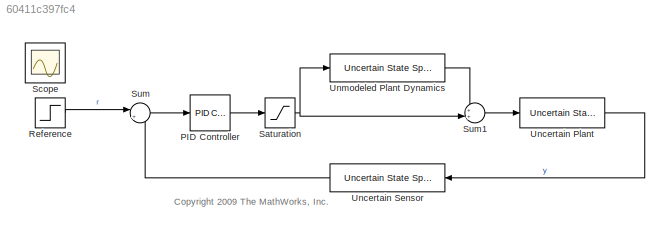
MODEL slx_60411c397fc4
KIND model
CONFIG AbsTol = auto
CONFIG EnableMultiTasking = on
CONFIG FixedStep = auto
CONFIG MaxStep = auto
CONFIG MinStep = auto
CONFIG RelTol = 1e-3
CONFIG SampleTimeConstraint = Unconstrained
CONFIG SolverName = ode45
CONFIG StartTime = 0
CONFIG StopTime = 10
WORKSPACE source: mxarray member
WORKSPACE PrivateRobust: object (value not decoded)
BLOCK [Reference] PID Controller  REF=slpidlib/PID Controller
  SourceBlock = slpidlib/PID Controller
  SourceType = PID 1dof
  Tag = PID1
BLOCK [Step] Reference
  SampleTime = 0
BLOCK [Saturate] Saturation
  LowerLimit = -1
  UpperLimit = 1
BLOCK [Scope] Scope
  Floating = off
  IOType = viewer
  NumInputPorts = 1
  ScopeSpecificationString = C++SS(StrPVP('Location','[1020, 584, 1344, 823]'),StrPVP('Open','off'),MxPVP('AxesTitles',54,'struct(''axes1'',''%<SignalLabel>'')'),StrPVP('ShowDataMarkers','off'),StrPVP('ShowLegends','off'),StrPVP('MaxDataPoints','7500'),StrPVP('LimitDataPoints','on'),StrPVP('DataFormat','Array'),StrPVP('Decimation','1'),StrPVP('BlockParamSampleInput','off'))
BLOCK [Sum] Sum
  Inputs = |+-
BLOCK [Sum] Sum1
  Inputs = ++|
BLOCK [Reference] Uncertain Plant  REF=RCTblocks/Uncertain State Space
  SourceBlock = RCTblocks/Uncertain State Space
  SourceType = Uncertain State Space Block
  Tag = USS
BLOCK [Reference] Uncertain Sensor  REF=RCTblocks/Uncertain State Space
  SourceBlock = RCTblocks/Uncertain State Space
  SourceType = Uncertain State Space Block
  Tag = USS
BLOCK [Reference] Unmodeled Plant Dynamics  REF=RCTblocks/Uncertain State Space
  SourceBlock = RCTblocks/Uncertain State Space
  SourceType = Uncertain State Space Block
  Tag = USS
ANNOTATION (root): <copyright redacted>
LINE PID Controller:1 -> Saturation:1
LINE Reference:1 -> Sum:1
NET Saturation:1 -> Sum1:2, Unmodeled Plant Dynamics:1
LINE Sum1:1 -> Uncertain Plant:1
LINE Sum:1 -> PID Controller:1
LINE Uncertain Plant:1 -> Uncertain Sensor:1
LINE Uncertain Sensor:1 -> Sum:2
LINE Unmodeled Plant Dynamics:1 -> Sum1:1
note: NET lines group one-source signal fan-out (src -> all destinations, sorted); 1:1 wires keep LINE
